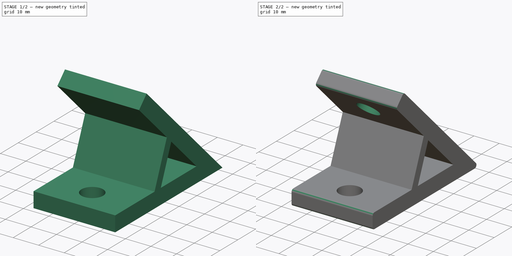
[diagram: build sequence overview — one tinted view per stage of 2, left to right]
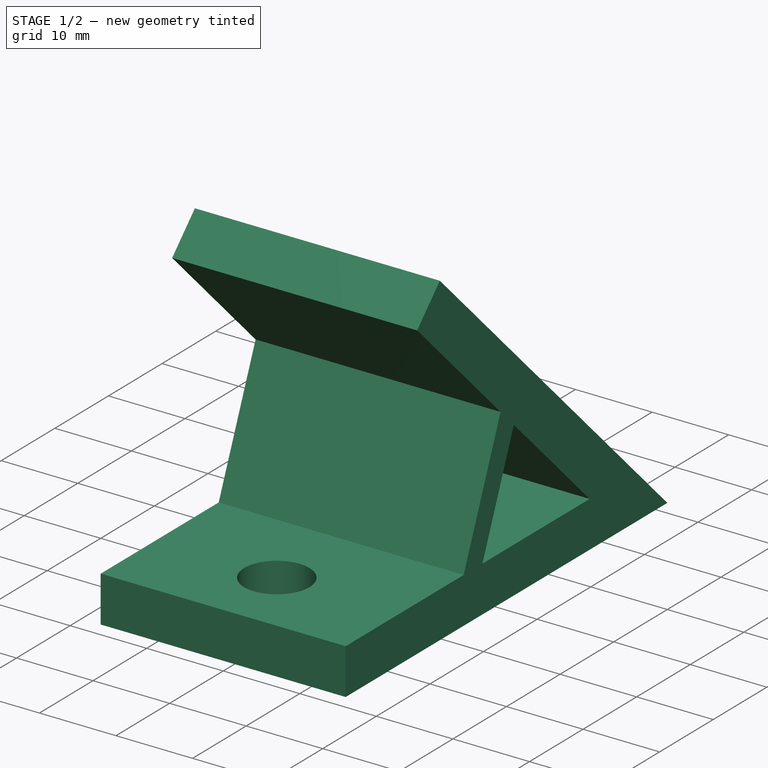
[diagram: stage 1 of 2 — iso view after this stage's code; geometry added in this stage tinted green]
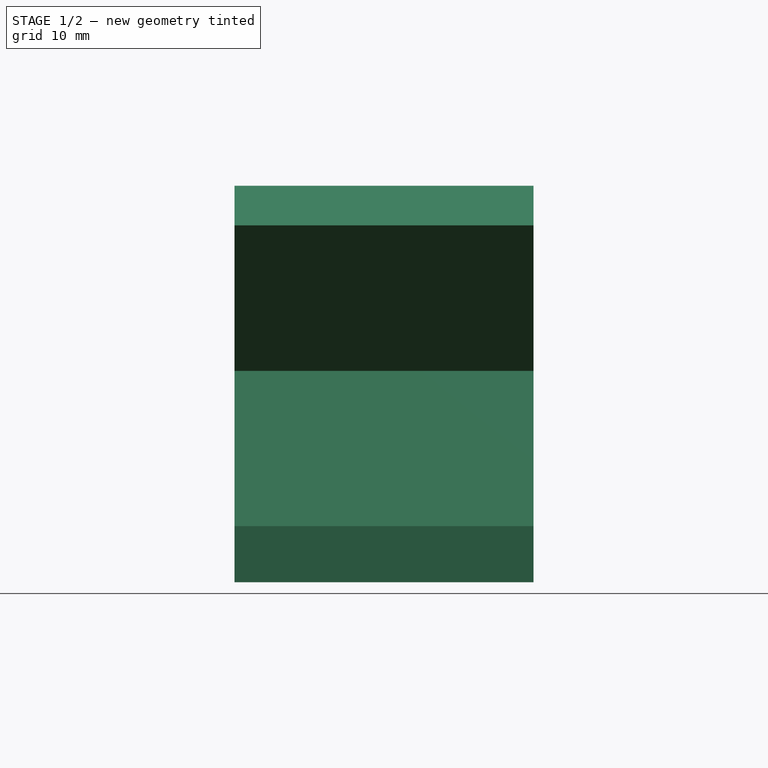
[diagram: stage 1 of 2 — front view after this stage's code; geometry added in this stage tinted green]
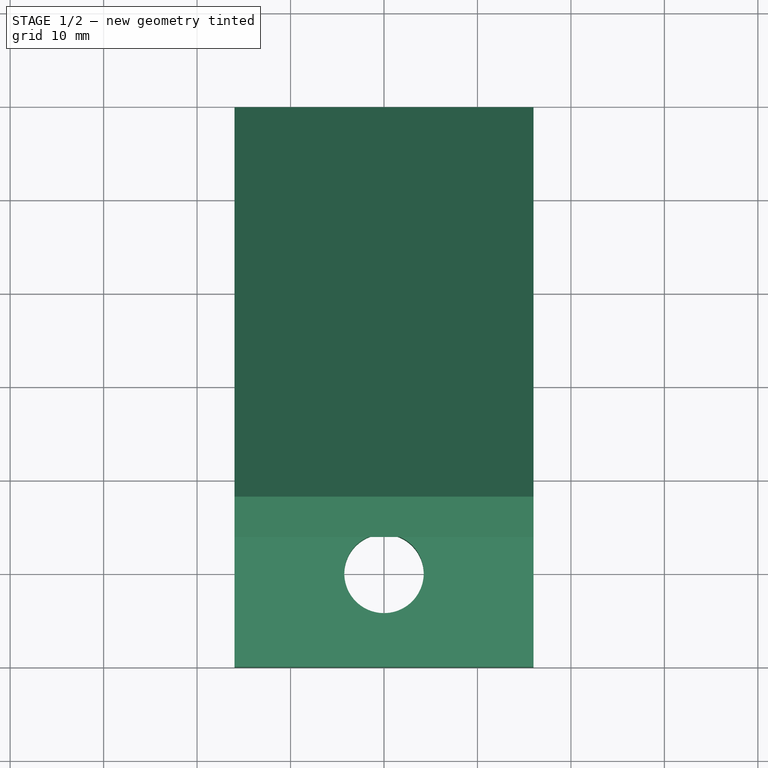
[diagram: stage 1 of 2 — top view after this stage's code; geometry added in this stage tinted green]
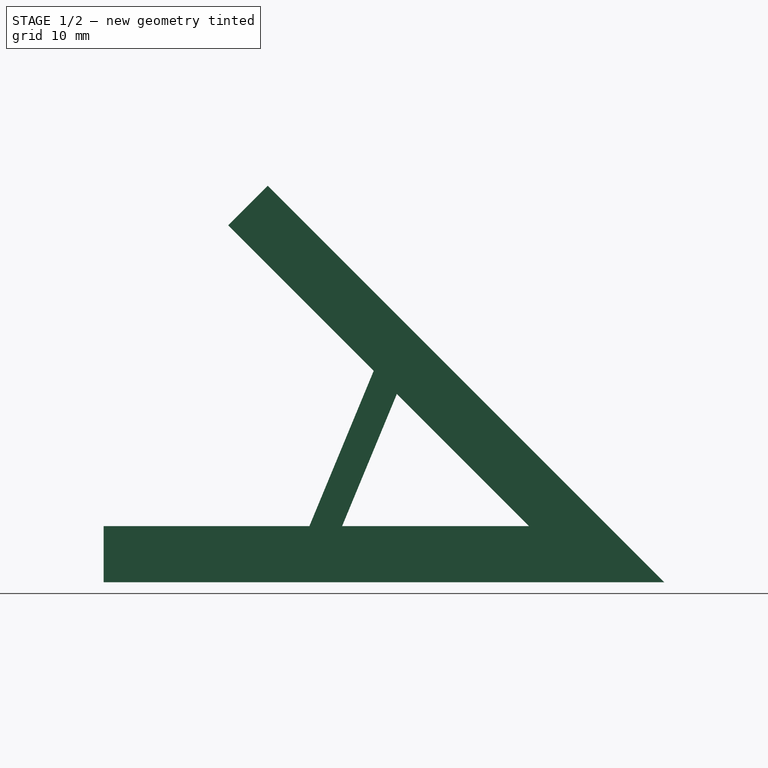
[diagram: stage 1 of 2 — right view after this stage's code; geometry added in this stage tinted green]
FCSTD DOCUMENT  (FreeCAD 1.0R39319 (Git))
Label: 4040__Gusset 45 Degree
License: All rights reserved
LicenseURL: https://en.wikipedia.org/wiki/All_rights_reserved
objects: Sketcher::SketchObject×3, PartDesign::Pocket×2, PartDesign::Pad×1, PartDesign::Fillet×1, PartDesign::Body×1
note: 19 computed .brp shape members not serialized (recipe doc carries the construction recipe); baked Part::Feature solids carry a one-line shape summary decoded from their .brp

FEATURE [Sketcher::SketchObject] Sketch
  ArcFitTolerance = 1e-06
  AttachmentSupport = -> [YZ_Plane]
  FullyConstrained = true
  MakeInternals = false
  MapMode = 5
  Placement = pos=(0,0,0) rot=(0.57735,0.57735,0.57735;2.0944rad)
  sketch-geometry (11):
    g0: LineSegment StartX=-60 StartY=0 StartZ=0 EndX=0 EndY=0 EndZ=0
    g1: LineSegment StartX=0 StartY=0 StartZ=0 EndX=-42.4264 EndY=42.4264 EndZ=0
    g2: LineSegment StartX=-60 StartY=0 StartZ=0 EndX=-60 EndY=6 EndZ=0
    g3: LineSegment StartX=-60 StartY=6 StartZ=0 EndX=-37.9853 EndY=6 EndZ=0
    g4: LineSegment StartX=-37.9853 StartY=6 StartZ=0 EndX=-31.1023 EndY=22.617 EndZ=0
    g5: LineSegment StartX=-31.1023 StartY=22.617 StartZ=0 EndX=-46.669 EndY=38.1838 EndZ=0
    g6: LineSegment StartX=-46.669 StartY=38.1838 StartZ=0 EndX=-42.4264 EndY=42.4264 EndZ=0
    g7: LineSegment StartX=-28.6274 StartY=20.1421 StartZ=0 EndX=-34.4853 EndY=6 EndZ=0
    g8: LineSegment StartX=-34.4853 StartY=6 StartZ=0 EndX=-14.4853 EndY=6 EndZ=0
    g9: LineSegment StartX=-14.4853 StartY=6 StartZ=0 EndX=-28.6274 EndY=20.1421 EndZ=0
    g10: LineSegment [constr] StartX=-28.6274 StartY=20.1421 StartZ=0 EndX=-31.1023 EndY=22.617 EndZ=0
  constraints (31):
    c: PointOnObject(g0,g-1)
    c: Coincident(g0,g-1)
    c: Coincident(g0,g1)
    c: DistanceX(g0,g0) = 60
    c: Distance(g1,g1) = 60
    c: Coincident(g0,g2)
    c: Vertical(g2)
    c: Coincident(g2,g3)
    c: Coincident(g3,g4)
    c: Coincident(g4,g5)
    c: Coincident(g5,g6)
    c: Coincident(g6,g1)
    c: Coincident(g7,g8)
    c: Horizontal(g8)
    c: Coincident(g8,g9)
    c: Coincident(g7,g9)
    c: Horizontal(g3)
    c: Horizontal(g3,g7)
    c: Parallel(g5,g1)
    c: Parallel(g9,g1)
    c: Parallel(g7,g4)
    c: Angle(g9,g8) = 0.785398
    c: Perpendicular(g1,g6)
    c: Equal(g2,g6)
    c: Distance(g2,g2) = 6
    c: Equal(g8,g9)
    c: DistanceX(g3,g7) = 3.5
    c: Coincident(g10,g7)
    c: Coincident(g10,g4)
    c: Parallel(g10,g1)
    c: DistanceX(g8,g8) = 20
FEATURE [PartDesign::Pad] Pad
  Direction = (1,0,0)
  Length = 32
  Length2 = 10
  Midplane = true
  Placement = pos=(0,0,0) rot=(1,1,1;2.0944rad)
  Profile = -> Sketch
  ReferenceAxis = -> Sketch [N_Axis]
  Refine = true
  Suppressed = false
  Type = 0
FEATURE [Sketcher::SketchObject] Sketch001
  ArcFitTolerance = 1e-06
  AttachmentSupport = -> [Pad]
  ExternalGeometry = -> [Pad]
  FullyConstrained = true
  MakeInternals = false
  MapMode = 5
  Placement = pos=(-7e-16,2e-15,6) rot=(0,0,-1;1.5708rad)
  sketch-geometry (1):
    g0: Circle CenterX=50 CenterY=0 CenterZ=0 NormalX=0 NormalY=0 NormalZ=1 AngleXU=0 Radius=4.25
  constraints (3):
    c: PointOnObject(g0,g-1)
    c: Diameter(g0) = 8.5
    c: Distance(g0,g-3) = 10
FEATURE [PartDesign::Pocket] Pocket
  BaseFeature = -> Pad
  Direction = (0,0,-1)
  Length = 5
  Length2 = 5
  Placement = pos=(0,0,0) rot=(1,1,1;2.0944rad)
  Profile = -> Sketch001
  ReferenceAxis = -> Sketch001 [N_Axis]
  Refine = true
  Suppressed = false
  Type = 2
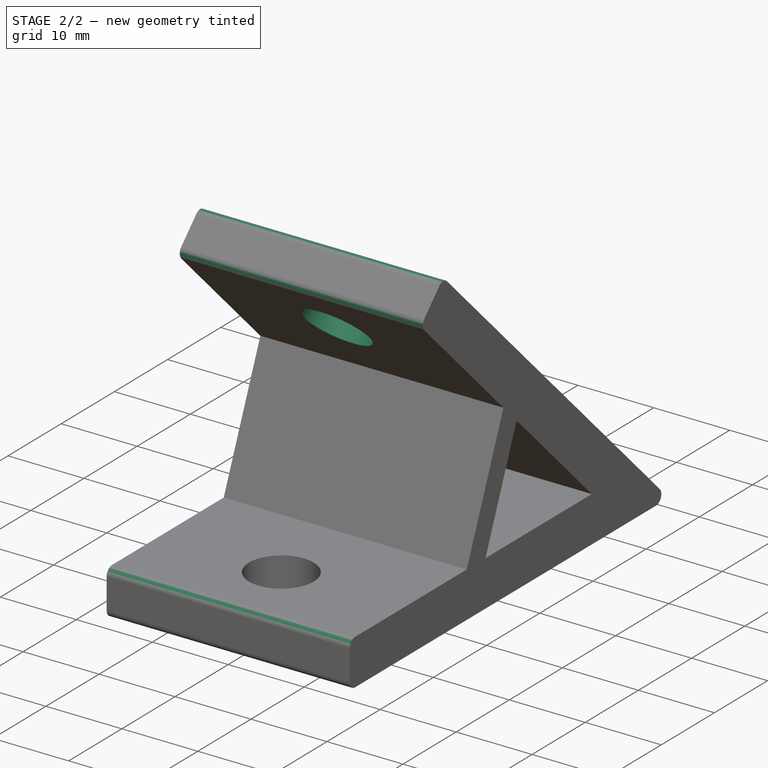
[diagram: stage 2 of 2 — iso view after this stage's code; geometry added in this stage tinted green]
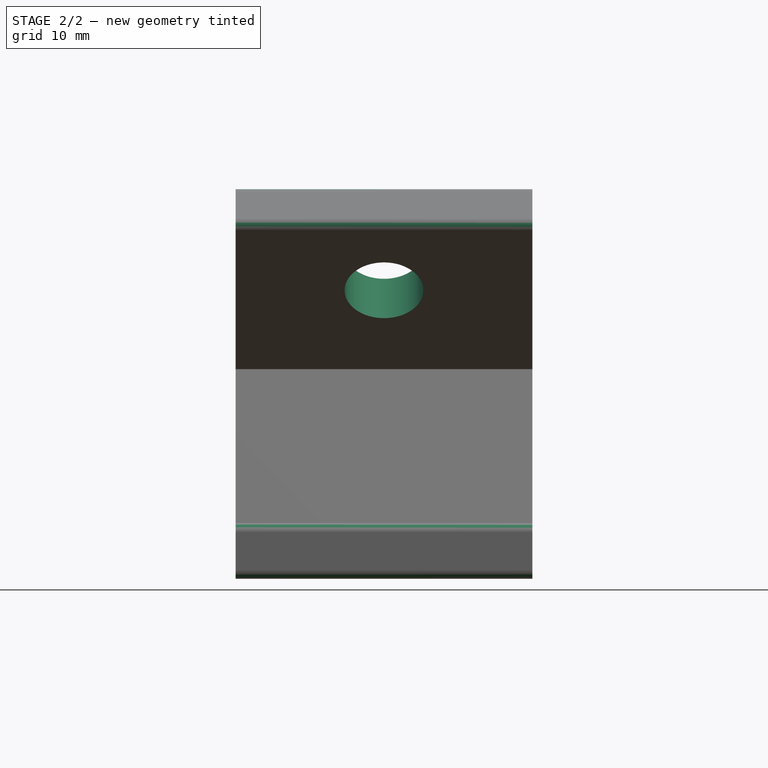
[diagram: stage 2 of 2 — front view after this stage's code; geometry added in this stage tinted green]
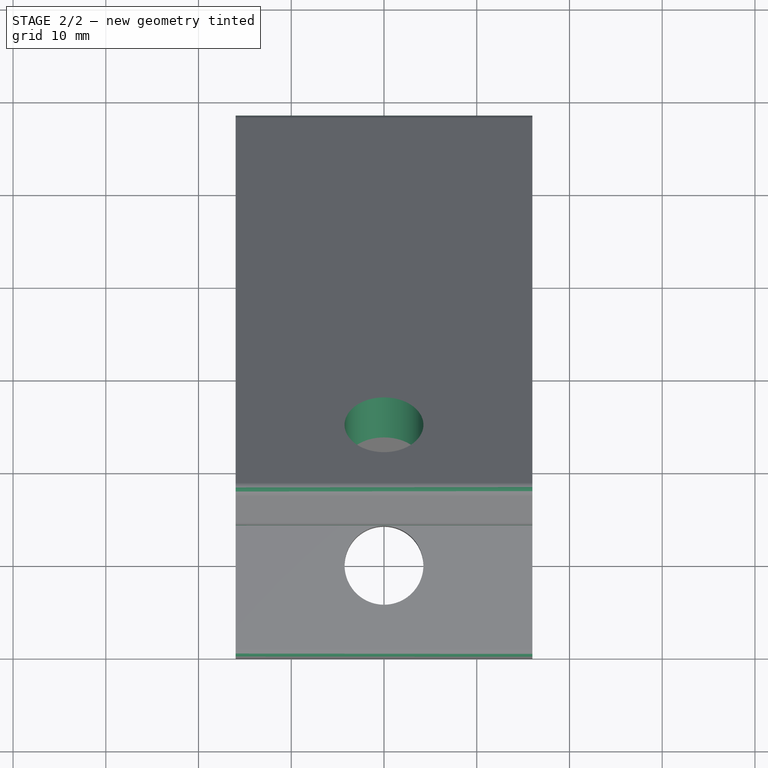
[diagram: stage 2 of 2 — top view after this stage's code; geometry added in this stage tinted green]
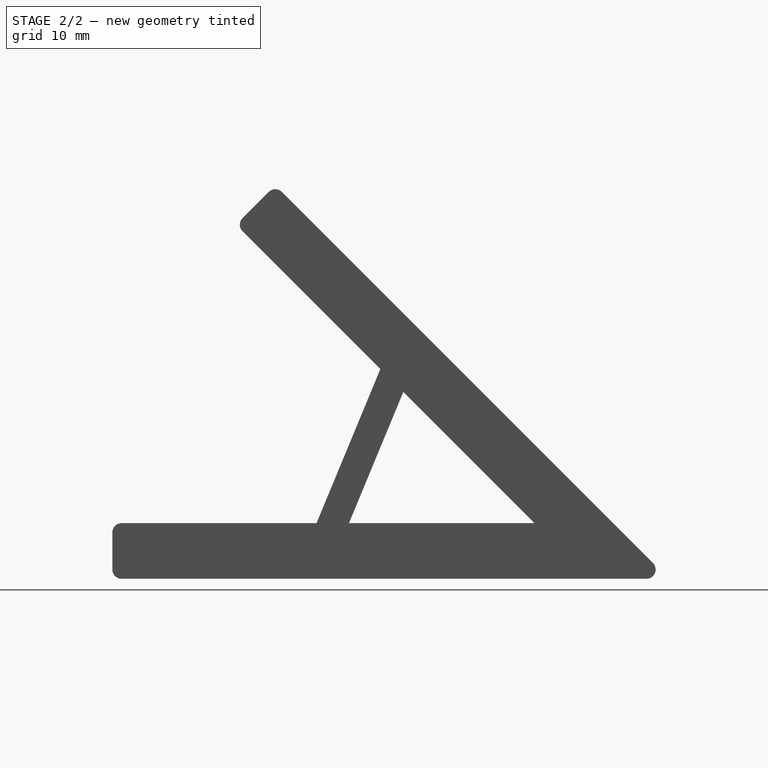
[diagram: stage 2 of 2 — right view after this stage's code; geometry added in this stage tinted green]
FEATURE [Sketcher::SketchObject] Sketch002
  ArcFitTolerance = 1e-06
  AttachmentSupport = -> [Pocket]
  ExternalGeometry = -> [Pocket]
  FullyConstrained = true
  MakeInternals = false
  MapMode = 5
  Placement = pos=(9e-16,-4.24264,-4.24264) rot=(0.678598,0.678598,-0.281085;2.59356rad)
  sketch-geometry (1):
    g0: Circle CenterX=-50 CenterY=0 CenterZ=0 NormalX=0 NormalY=0 NormalZ=1 AngleXU=0 Radius=4.25
  constraints (3):
    c: PointOnObject(g0,g-1)
    c: Diameter(g0) = 8.5
    c: Distance(g0,g-3) = 10
FEATURE [PartDesign::Pocket] Pocket001
  BaseFeature = -> Pocket
  Direction = (0,0.707107,0.707107)
  Length = 5
  Length2 = 5
  Placement = pos=(0,0,0) rot=(1,1,1;2.0944rad)
  Profile = -> Sketch002
  ReferenceAxis = -> Sketch002 [N_Axis]
  Refine = true
  Suppressed = false
  Type = 2
FEATURE [PartDesign::Fillet] Fillet
  Base = -> Pocket001 [Edge4,Edge1,Edge6,Edge30,Edge25]
  BaseFeature = -> Pocket001
  Placement = pos=(0,0,0) rot=(1,1,1;2.0944rad)
  Radius = 1
  Refine = true
  SupportTransform = false
  Suppressed = false
  UseAllEdges = false
FEATURE [PartDesign::Body] Body
  AllowCompound = false
  Group = -> [Sketch,Pad,Sketch001,Pocket,Sketch002,Pocket001,Fillet]
  Origin = -> Origin
  Tip = -> Fillet
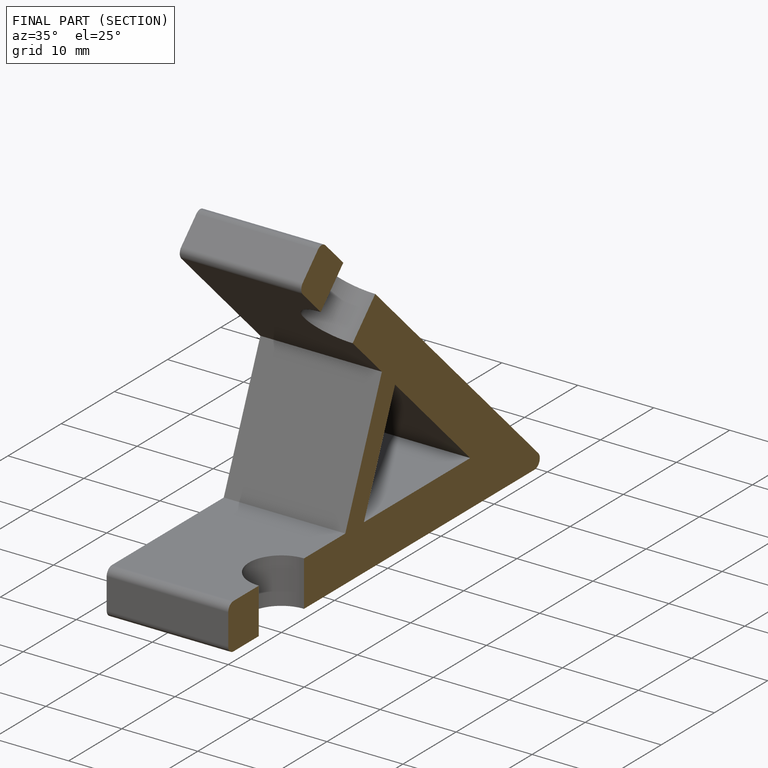
[diagram: finished part — half-section view (interior)]
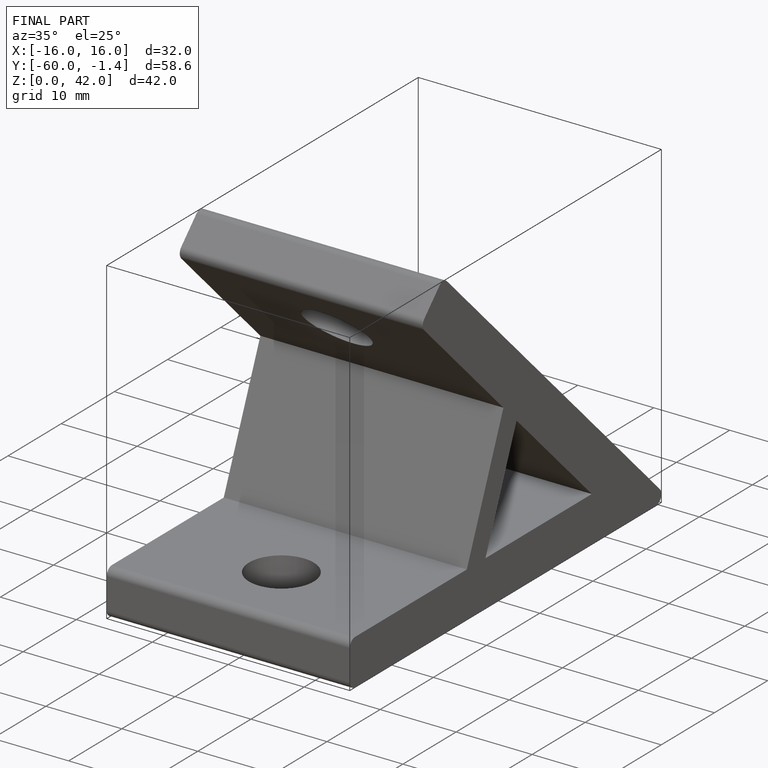
[diagram: finished part — iso view with bounding-box wireframe]
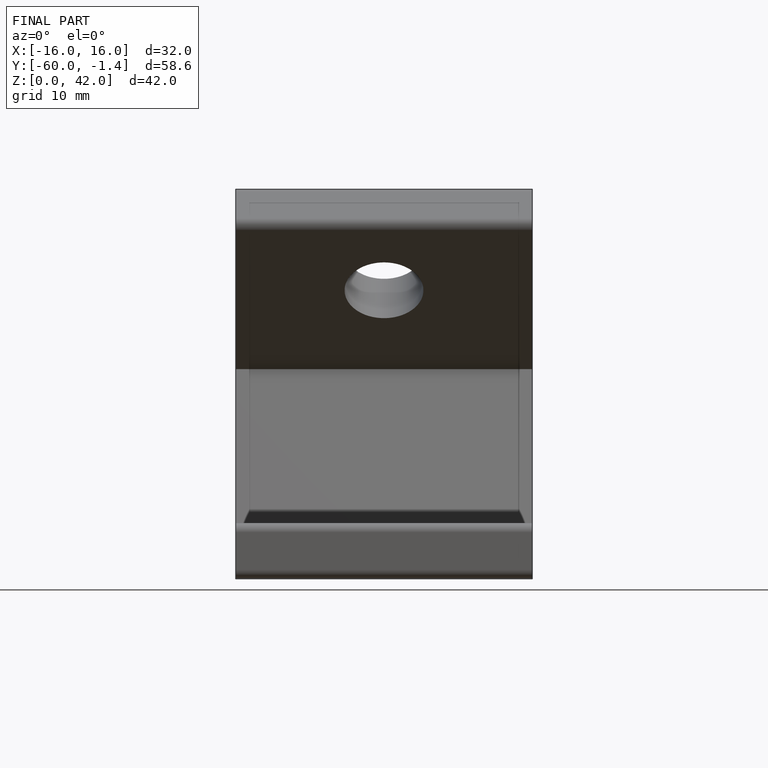
[diagram: finished part — front view with bounding-box wireframe]
